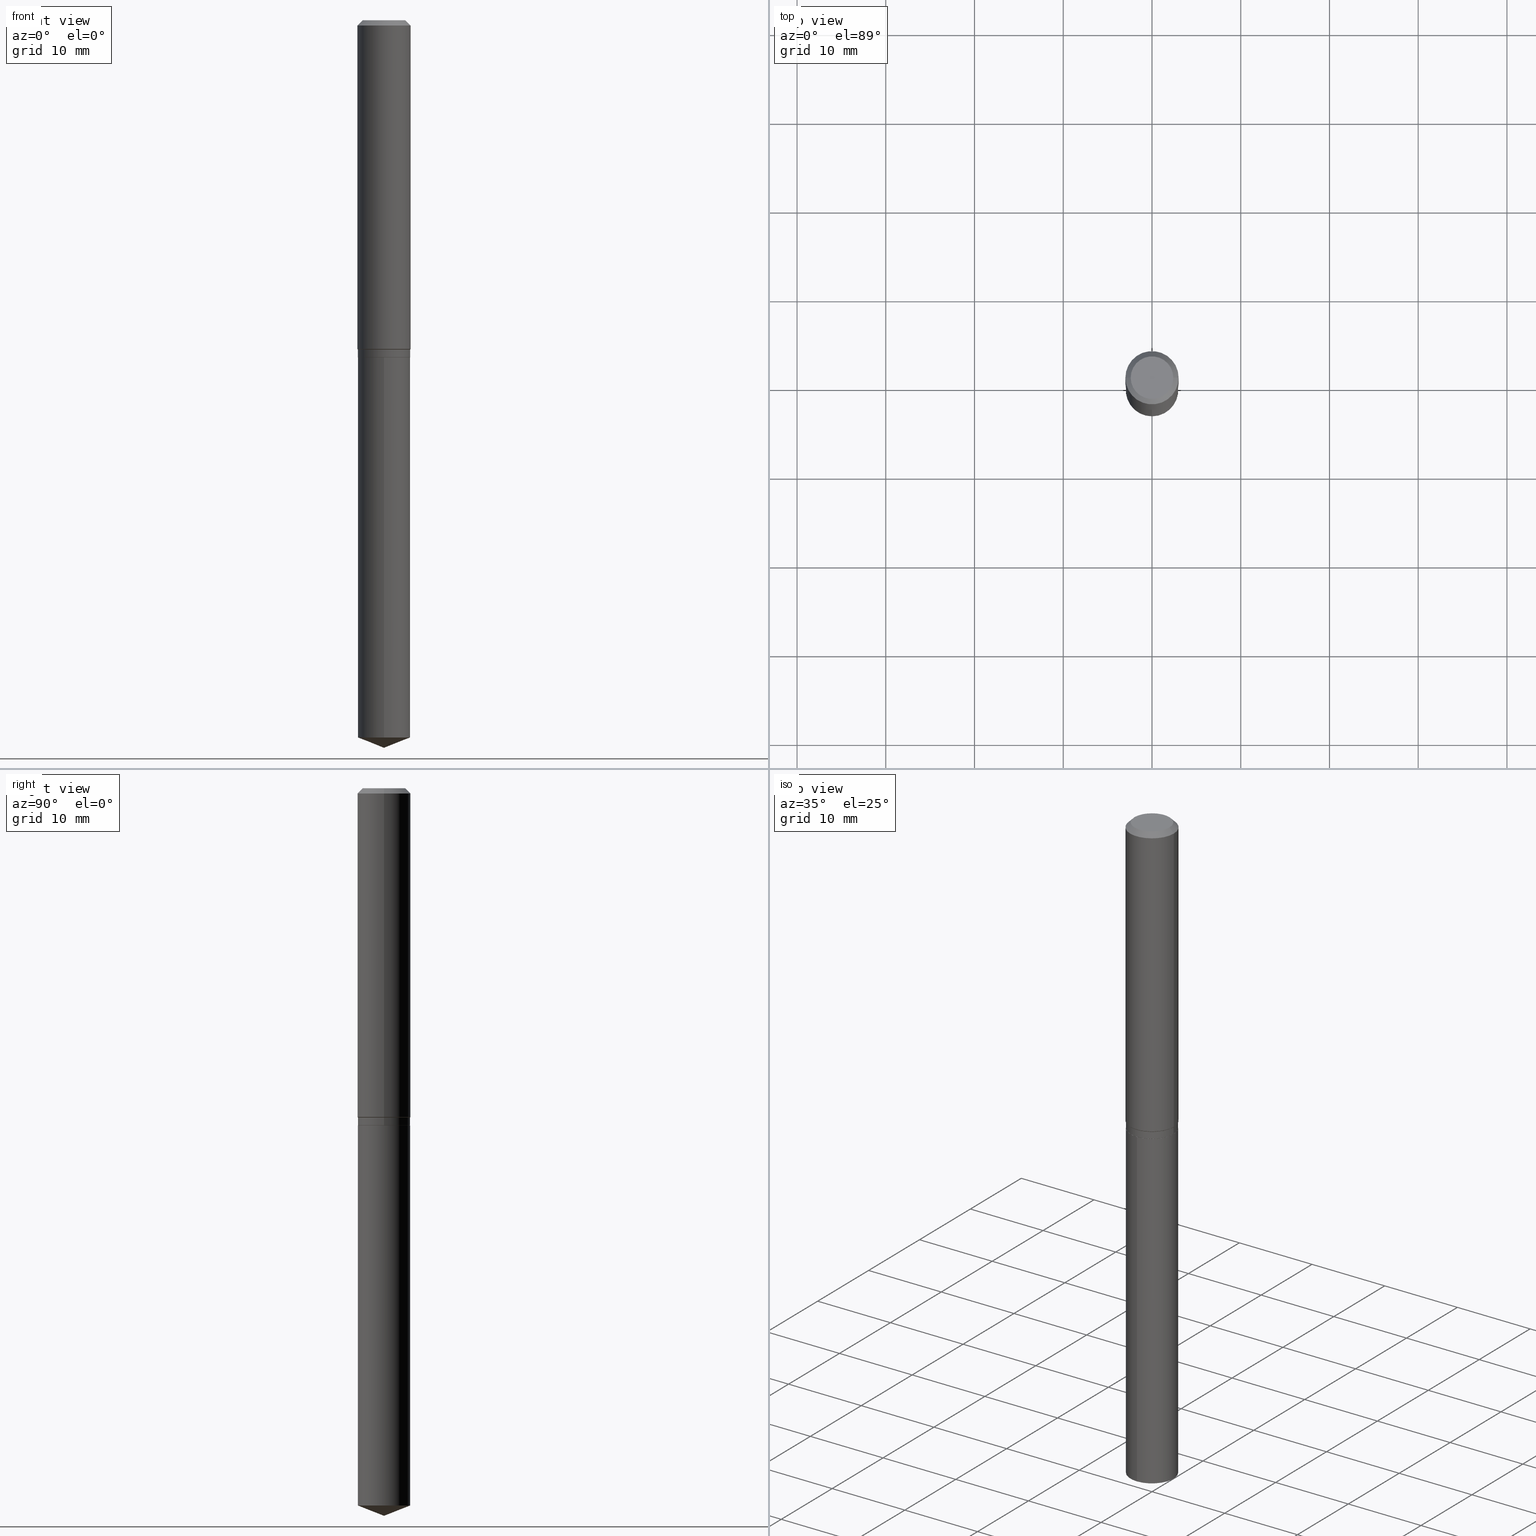
[diagram: canonical four-view strip — front | top / right | iso, engineering-drawing reading convention]
A machine part, canonical four-view strip (front | top / right | iso — engineering-drawing reading convention). The complete STEP part file that produces these views, byte-faithful:
ISO-10303-21;
HEADER;
FILE_DESCRIPTION (( 'STEP AP203' ),
    '1' );
FILE_NAME ('66532.STEP',
    '2024-04-25T00:25:37',
    ( '' ),
    ( '' ),
    'SwSTEP 2.0',
    'SolidWorks 2023',
    '' );
FILE_SCHEMA (( 'CONFIG_CONTROL_DESIGN' ));
ENDSEC;

DATA;
#1 = APPROVAL ( #393, 'UNSPECIFIED' ) ;
#2 = FACE_OUTER_BOUND ( 'NONE', #19, .T. ) ;
#3 = DATE_TIME_ROLE ( 'classification_date' ) ;
#4 = VECTOR ( 'NONE', #193, 39.37007874015748143 ) ;
#5 = CARTESIAN_POINT ( 'NONE',  ( 8.252953875854342889E-16, 0.1161499999999947713, -1.495700000000000474 ) ) ;
#6 = APPROVAL_DATE_TIME ( #41, #446 ) ;
#7 = DIRECTION ( 'NONE',  ( 1.000000000000000000, -6.982962677686265922E-15, 0.000000000000000000 ) ) ;
#8 = CARTESIAN_POINT ( 'NONE',  ( 7.893967087600545185E-29, -1.127051177785968140E-14, -3.228000000000000203 ) ) ;
#9 = DATE_AND_TIME ( #386, #75 ) ;
#10 = EDGE_CURVE ( 'NONE', #144, #476, #71, .T. ) ;
#11 = DIRECTION ( 'NONE',  ( -2.445468806185136597E-29, 3.491481338843145583E-15, 1.000000000000000000 ) ) ;
#12 = APPROVAL_DATE_TIME ( #456, #186 ) ;
#13 = AXIS2_PLACEMENT_3D ( 'NONE', #420, #463, #304 ) ;
#14 = ADVANCED_FACE ( 'NONE', ( #480 ), #68, .T. ) ;
#15 = DIRECTION ( 'NONE',  ( 1.000000000000000000, -6.982962677686265922E-15, 0.000000000000000000 ) ) ;
#16 = ORIENTED_EDGE ( 'NONE', *, *, #132, .T. ) ;
#17 = ADVANCED_FACE ( 'NONE', ( #448 ), #293, .F. ) ;
#18 = DIRECTION ( 'NONE',  ( 1.000000000000000000, -6.982962677686265922E-15, 0.000000000000000000 ) ) ;
#19 = EDGE_LOOP ( 'NONE', ( #206, #16, #65, #155 ) ) ;
#20 = EDGE_CURVE ( 'NONE', #476, #135, #414, .T. ) ;
#21 = ORIENTED_EDGE ( 'NONE', *, *, #66, .T. ) ;
#22 = LINE ( 'NONE', #197, #274 ) ;
#23 = CIRCLE ( 'NONE', #302, 0.1180999999999999966 ) ;
#24 = AXIS2_PLACEMENT_3D ( 'NONE', #243, #136, #361 ) ;
#25 = ORIENTED_EDGE ( 'NONE', *, *, #165, .F. ) ;
#26 = CARTESIAN_POINT ( 'NONE',  ( -0.1181000000000000799, 8.391509709326788873E-16, -5.809262341591047988E-30 ) ) ;
#27 = EDGE_LOOP ( 'NONE', ( #411, #301, #90, #244 ) ) ;
#28 = CALENDAR_DATE ( 2024, 24, 4 ) ;
#29 = ORIENTED_EDGE ( 'NONE', *, *, #316, .F. ) ;
#30 = CIRCLE ( 'NONE', #74, 0.1161500000000000032 ) ;
#31 = DIRECTION ( 'NONE',  ( -2.445468806185136597E-29, 3.491481338843145583E-15, 1.000000000000000000 ) ) ;
#32 = APPROVAL_PERSON_ORGANIZATION ( #80, #1, #51 ) ;
#33 = FACE_OUTER_BOUND ( 'NONE', #212, .T. ) ;
#34 = CARTESIAN_POINT ( 'NONE',  ( -0.09447999999999998066, 7.009847083995354710E-16, -1.928573779297727792E-17 ) ) ;
#35 = EDGE_CURVE ( 'NONE', #115, #458, #338, .T. ) ;
#36 = CARTESIAN_POINT ( 'NONE',  ( -0.1161500000000000032, -4.335288605291756006E-15, -1.495200000000000307 ) ) ;
#37 = CIRCLE ( 'NONE', #370, 0.09447999999999998066 ) ;
#38 = EDGE_LOOP ( 'NONE', ( #164, #283, #130, #137 ) ) ;
#39 = CC_DESIGN_PERSON_AND_ORGANIZATION_ASSIGNMENT ( #179, #410, ( #158 ) ) ;
#40 = CYLINDRICAL_SURFACE ( 'NONE', #321, 0.1161500000000000032 ) ;
#41 = DATE_AND_TIME ( #345, #105 ) ;
#42 = FACE_OUTER_BOUND ( 'NONE', #224, .T. ) ;
#43 = DIRECTION ( 'NONE',  ( 1.000000000000000000, -6.982962677686269866E-15, 0.000000000000000000 ) ) ;
#44 = CARTESIAN_POINT ( 'NONE',  ( 3.657687693411109493E-29, -5.222208638507693246E-15, -1.495700000000000029 ) ) ;
#45 = CLOSED_SHELL ( 'NONE', ( #306, #128, #437, #58, #194, #381, #375, #487, #14, #17, #217, #103 ) ) ;
#46 = CIRCLE ( 'NONE', #371, 0.1161500000000000032 ) ;
#47 = DIRECTION ( 'NONE',  ( 0.7071067811866199593, -2.468850131083015945E-15, 0.7071067811864750752 ) ) ;
#48 = PERSON_AND_ORGANIZATION ( #482, #177 ) ;
#49 = LINE ( 'NONE', #391, #313 ) ;
#50 = CARTESIAN_POINT ( 'NONE',  ( 0.09447999999999998066, -7.704367267948738690E-16, -1.928573779296752193E-17 ) ) ;
#51 = APPROVAL_ROLE ( '' ) ;
#52 = DIRECTION ( 'NONE',  ( -2.445468806185136597E-29, 3.491481338843145583E-15, 1.000000000000000000 ) ) ;
#53 = DIRECTION ( 'NONE',  ( 1.000000000000000000, -6.982962677686269866E-15, 0.000000000000000000 ) ) ;
#54 = DIRECTION ( 'NONE',  ( 1.000000000000000000, -6.982962677686265922E-15, 0.000000000000000000 ) ) ;
#55 = ORIENTED_EDGE ( 'NONE', *, *, #35, .F. ) ;
#56 = CARTESIAN_POINT ( 'NONE',  ( -0.1180999999999999966, 7.422191030112725094E-16, -0.02362000000000014088 ) ) ;
#57 = VERTEX_POINT ( 'NONE', #472 ) ;
#58 = ADVANCED_FACE ( 'NONE', ( #356 ), #229, .T. ) ;
#59 = EDGE_LOOP ( 'NONE', ( #358, #425 ) ) ;
#60 = CIRCLE ( 'NONE', #91, 0.1181000000000001632 ) ;
#61 = VECTOR ( 'NONE', #261, 39.37007874015748143 ) ;
#62 = DIRECTION ( 'NONE',  ( -2.445468806185136597E-29, 3.491481338843145583E-15, 1.000000000000000000 ) ) ;
#63 = VERTEX_POINT ( 'NONE', #131 ) ;
#64 = CARTESIAN_POINT ( 'NONE',  ( -0.1156500000000000028, -4.400465964601137164E-15, -1.495700000000000029 ) ) ;
#65 = ORIENTED_EDGE ( 'NONE', *, *, #403, .T. ) ;
#66 = EDGE_CURVE ( 'NONE', #253, #374, #239, .T. ) ;
#67 = LINE ( 'NONE', #98, #281 ) ;
#68 = CONICAL_SURFACE ( 'NONE', #133, 0.1180999999999999966, 0.7853981633974460586 ) ;
#69 = AXIS2_PLACEMENT_3D ( 'NONE', #402, #315, #232 ) ;
#70 = LOCAL_TIME ( 20, 25, 37.00000000000000000, #376 ) ;
#71 = LINE ( 'NONE', #174, #397 ) ;
#72 = CARTESIAN_POINT ( 'NONE',  ( 3.572585378955866653E-29, -5.100705087915951864E-15, -1.460900000000000309 ) ) ;
#73 = CARTESIAN_POINT ( 'NONE',  ( -8.838321353069555042E-28, 1.261909868020604563E-13, 36.14207874015747990 ) ) ;
#74 = AXIS2_PLACEMENT_3D ( 'NONE', #377, #31, #108 ) ;
#75 = LOCAL_TIME ( 20, 25, 37.00000000000000000, #117 ) ;
#76 = CARTESIAN_POINT ( 'NONE',  ( 0.000000000000000000, 0.000000000000000000, 0.000000000000000000 ) ) ;
#77 = EDGE_CURVE ( 'NONE', #135, #476, #30, .T. ) ;
#78 = CARTESIAN_POINT ( 'NONE',  ( 0.1156500000000000028, -6.029788272182109985E-15, -1.495700000000000029 ) ) ;
#79 = DIRECTION ( 'NONE',  ( 1.000000000000000000, -6.982962677686265922E-15, 0.000000000000000000 ) ) ;
#80 = PERSON_AND_ORGANIZATION ( #482, #177 ) ;
#81 = LOCAL_TIME ( 20, 25, 37.00000000000000000, #272 ) ;
#82 = DIRECTION ( 'NONE',  ( 1.000000000000000000, -6.982962677686265922E-15, 4.876176775795935793E-29 ) ) ;
#83 = APPROVAL_ROLE ( '' ) ;
#84 = ADVANCED_FACE ( 'NONE', ( #33 ), #259, .T. ) ;
#85 = CARTESIAN_POINT ( 'NONE',  ( 3.572585378955866653E-29, -5.100705087915951864E-15, -1.460900000000000309 ) ) ;
#86 = DIRECTION ( 'NONE',  ( 1.000000000000000000, -6.982962677686266711E-15, 0.000000000000000000 ) ) ;
#87 = DIRECTION ( 'NONE',  ( 1.000000000000000000, -6.982962677686265922E-15, 4.876176775795935793E-29 ) ) ;
#88 = DIRECTION ( 'NONE',  ( 1.000000000000000000, -6.982962677686267499E-15, 4.875432709231658792E-29 ) ) ;
#89 = DIRECTION ( 'NONE',  ( -2.445468806185136597E-29, 3.491481338843145583E-15, 1.000000000000000000 ) ) ;
#90 = ORIENTED_EDGE ( 'NONE', *, *, #254, .T. ) ;
#91 = AXIS2_PLACEMENT_3D ( 'NONE', #195, #52, #373 ) ;
#92 = EDGE_LOOP ( 'NONE', ( #442, #153, #473, #363 ) ) ;
#93 = EDGE_CURVE ( 'NONE', #203, #270, #405, .T. ) ;
#94 = CARTESIAN_POINT ( 'NONE',  ( 3.657687693411109493E-29, -5.222208638507693246E-15, -1.495700000000000029 ) ) ;
#95 = ORIENTED_EDGE ( 'NONE', *, *, #389, .T. ) ;
#96 = EDGE_CURVE ( 'NONE', #311, #278, #37, .T. ) ;
#97 = ORIENTED_EDGE ( 'NONE', *, *, #421, .F. ) ;
#98 = CARTESIAN_POINT ( 'NONE',  ( -0.1161500000000000032, -4.275409700330595673E-15, -1.460900000000000309 ) ) ;
#99 = AXIS2_PLACEMENT_3D ( 'NONE', #455, #116, #87 ) ;
#100 = ORIENTED_EDGE ( 'NONE', *, *, #171, .F. ) ;
#101 = CARTESIAN_POINT ( 'NONE',  ( 3.657687693411109493E-29, -5.222208638507693246E-15, -1.495700000000000029 ) ) ;
#102 = DIRECTION ( 'NONE',  ( -2.445439244954803263E-29, 3.491523672207503504E-15, 1.000000000000000000 ) ) ;
#103 = ADVANCED_FACE ( 'NONE', ( #360 ), #163, .T. ) ;
#104 = CIRCLE ( 'NONE', #69, 0.1156500000000000028 ) ;
#105 = LOCAL_TIME ( 20, 25, 37.00000000000000000, #271 ) ;
#106 = DIRECTION ( 'NONE',  ( 2.438088387897960049E-29, -3.491481338843145188E-15, -1.000000000000000000 ) ) ;
#107 = CC_DESIGN_PERSON_AND_ORGANIZATION_ASSIGNMENT ( #120, #124, ( #439 ) ) ;
#108 = DIRECTION ( 'NONE',  ( 1.000000000000000000, -6.982962677686265922E-15, 0.000000000000000000 ) ) ;
#109 = FACE_OUTER_BOUND ( 'NONE', #167, .T. ) ;
#110 = VERTEX_POINT ( 'NONE', #190 ) ;
#111 = DIRECTION ( 'NONE',  ( -6.982962677686265922E-15, -1.000000000000000000, 2.351999994545211393E-15 ) ) ;
#112 = PERSON_AND_ORGANIZATION_ROLE ( 'creator' ) ;
#113 = AXIS2_PLACEMENT_3D ( 'NONE', #332, #481, #380 ) ;
#114 = AXIS2_PLACEMENT_3D ( 'NONE', #357, #382, #86 ) ;
#115 = VERTEX_POINT ( 'NONE', #340 ) ;
#116 = DIRECTION ( 'NONE',  ( -2.438088387897960049E-29, 3.491481338843145188E-15, 1.000000000000000000 ) ) ;
#117 = COORDINATED_UNIVERSAL_TIME_OFFSET ( 5, 0, .BEHIND. ) ;
#118 =( CONVERSION_BASED_UNIT ( 'INCH', #309 ) LENGTH_UNIT ( ) NAMED_UNIT ( #418 ) );
#119 = CC_DESIGN_DATE_AND_TIME_ASSIGNMENT ( #9, #350, ( #462 ) ) ;
#120 = PERSON_AND_ORGANIZATION ( #482, #177 ) ;
#121 = DIRECTION ( 'NONE',  ( -2.445468806185136597E-29, 3.491481338843145583E-15, 1.000000000000000000 ) ) ;
#122 = EDGE_CURVE ( 'NONE', #320, #144, #427, .T. ) ;
#123 = DIRECTION ( 'NONE',  ( -2.445468806185136597E-29, 3.491481338843145583E-15, 1.000000000000000000 ) ) ;
#124 = PERSON_AND_ORGANIZATION_ROLE ( 'classification_officer' ) ;
#125 = DIRECTION ( 'NONE',  ( -2.445468806185136597E-29, 3.491481338843145583E-15, 1.000000000000000000 ) ) ;
#126 = AXIS2_PLACEMENT_3D ( 'NONE', #406, #89, #319 ) ;
#127 = APPROVAL_PERSON_ORGANIZATION ( #156, #446, #83 ) ;
#128 = ADVANCED_FACE ( 'NONE', ( #2 ), #208, .T. ) ;
#129 = CARTESIAN_POINT ( 'NONE',  ( 0.000000000000000000, 0.000000000000000000, 0.000000000000000000 ) ) ;
#130 = ORIENTED_EDGE ( 'NONE', *, *, #403, .F. ) ;
#131 = CARTESIAN_POINT ( 'NONE',  ( 7.893877882714105737E-29, -1.127063841388582228E-14, -3.228000000000000203 ) ) ;
#132 = EDGE_CURVE ( 'NONE', #278, #250, #300, .T. ) ;
#133 = AXIS2_PLACEMENT_3D ( 'NONE', #415, #333, #146 ) ;
#134 = VECTOR ( 'NONE', #222, 39.37007874015748143 ) ;
#135 = VERTEX_POINT ( 'NONE', #159 ) ;
#136 = DIRECTION ( 'NONE',  ( 0.000000000000000000, 0.000000000000000000, 1.000000000000000000 ) ) ;
#137 = ORIENTED_EDGE ( 'NONE', *, *, #254, .F. ) ;
#138 = ORIENTED_EDGE ( 'NONE', *, *, #66, .F. ) ;
#139 = DIRECTION ( 'NONE',  ( 6.982962677686265922E-15, 1.000000000000000000, -3.491523672207503899E-15 ) ) ;
#140 = VECTOR ( 'NONE', #256, 39.37007874015748143 ) ;
#141 = CONICAL_SURFACE ( 'NONE', #479, 0.1161500000000000032, 0.7853981633974308485 ) ;
#142 = FACE_OUTER_BOUND ( 'NONE', #27, .T. ) ;
#143 = CARTESIAN_POINT ( 'NONE',  ( 7.782036645042066556E-29, -1.111082845467075413E-14, -3.182247298257325330 ) ) ;
#144 = VERTEX_POINT ( 'NONE', #432 ) ;
#145 = FACE_OUTER_BOUND ( 'NONE', #401, .T. ) ;
#146 = DIRECTION ( 'NONE',  ( -1.000000000000000000, 6.982962677686266711E-15, 0.000000000000000000 ) ) ;
#147 = PERSON_AND_ORGANIZATION ( #482, #177 ) ;
#148 = AXIS2_PLACEMENT_3D ( 'NONE', #210, #399, #54 ) ;
#149 = APPLICATION_CONTEXT ( 'configuration controlled 3d designs of mechanical parts and assemblies' ) ;
#150 = CIRCLE ( 'NONE', #114, 0.1180999999999999966 ) ;
#151 = DIRECTION ( 'NONE',  ( 1.000000000000000000, -6.982962677686266711E-15, 4.876176775795936353E-29 ) ) ;
#152 = FACE_OUTER_BOUND ( 'NONE', #92, .T. ) ;
#153 = ORIENTED_EDGE ( 'NONE', *, *, #316, .T. ) ;
#154 = CIRCLE ( 'NONE', #355, 0.1161500000000000032 ) ;
#155 = ORIENTED_EDGE ( 'NONE', *, *, #468, .F. ) ;
#156 = PERSON_AND_ORGANIZATION ( #482, #177 ) ;
#157 = EDGE_CURVE ( 'NONE', #63, #110, #225, .T. ) ;
#158 = PRODUCT ( '66532', '66532', '', ( #218 ) ) ;
#159 = CARTESIAN_POINT ( 'NONE',  ( -0.1161500000000000032, -4.335288605291756006E-15, -1.460900000000000309 ) ) ;
#160 = PERSON_AND_ORGANIZATION ( #482, #177 ) ;
#161 = CARTESIAN_POINT ( 'NONE',  ( -8.110711150132233597E-16, -0.1161500000000052213, -1.495699999999999807 ) ) ;
#162 =( NAMED_UNIT ( * ) PLANE_ANGLE_UNIT ( ) SI_UNIT ( $, .RADIAN. ) );
#163 = CONICAL_SURFACE ( 'NONE', #176, 0.1156500000000000028, 0.7853981633975507526 ) ;
#164 = ORIENTED_EDGE ( 'NONE', *, *, #291, .T. ) ;
#165 = EDGE_CURVE ( 'NONE', #110, #203, #390, .T. ) ;
#166 = CARTESIAN_POINT ( 'NONE',  ( 3.657687693411109493E-29, -5.222208638507693246E-15, -1.495700000000000029 ) ) ;
#167 = EDGE_LOOP ( 'NONE', ( #444, #323, #215, #200 ) ) ;
#168 = ORIENTED_EDGE ( 'NONE', *, *, #171, .T. ) ;
#169 = DIRECTION ( 'NONE',  ( -2.445468806185136877E-29, 3.491481338843145188E-15, 1.000000000000000000 ) ) ;
#170 = ORIENTED_EDGE ( 'NONE', *, *, #132, .F. ) ;
#171 = EDGE_CURVE ( 'NONE', #63, #57, #388, .T. ) ;
#172 = ORIENTED_EDGE ( 'NONE', *, *, #77, .T. ) ;
#173 = APPROVAL_STATUS ( 'not_yet_approved' ) ;
#174 = CARTESIAN_POINT ( 'NONE',  ( 0.1161500000000000032, -8.110711150132598445E-16, 5.663679325086979799E-30 ) ) ;
#175 = DIRECTION ( 'NONE',  ( -0.7071067811865351382, 7.493145998870309984E-15, 0.7071067811865598962 ) ) ;
#176 = AXIS2_PLACEMENT_3D ( 'NONE', #166, #279, #43 ) ;
#177 = ORGANIZATION ( 'UNSPECIFIED', 'UNSPECIFIED', '' ) ;
#178 = DIRECTION ( 'NONE',  ( -2.445468806185136597E-29, 3.491481338843145583E-15, 1.000000000000000000 ) ) ;
#179 = PERSON_AND_ORGANIZATION ( #482, #177 ) ;
#180 = EDGE_LOOP ( 'NONE', ( #138, #372, #467, #236 ) ) ;
#181 = DIRECTION ( 'NONE',  ( -2.445439244954803263E-29, 3.491523672207503504E-15, 1.000000000000000000 ) ) ;
#182 = VECTOR ( 'NONE', #298, 39.37007874015748854 ) ;
#183 = APPROVAL_PERSON_ORGANIZATION ( #147, #186, #297 ) ;
#184 = EDGE_LOOP ( 'NONE', ( #354, #285, #404, #97 ) ) ;
#185 = PERSON_AND_ORGANIZATION_ROLE ( 'creator' ) ;
#186 = APPROVAL ( #173, 'UNSPECIFIED' ) ;
#187 = PLANE ( 'NONE',  #99 ) ;
#188 = APPROVAL_STATUS ( 'not_yet_approved' ) ;
#189 = ORIENTED_EDGE ( 'NONE', *, *, #10, .T. ) ;
#190 = CARTESIAN_POINT ( 'NONE',  ( 8.252953875854339931E-16, 0.1161499999999888871, -3.182247298257326218 ) ) ;
#191 = CIRCLE ( 'NONE', #384, 0.1161500000000000032 ) ;
#192 = DIRECTION ( 'NONE',  ( -2.445439244954803263E-29, 3.491523672207503504E-15, 1.000000000000000000 ) ) ;
#193 = DIRECTION ( 'NONE',  ( 0.7071067811865459074, -7.319954787623249734E-15, -0.7071067811865491270 ) ) ;
#194 = ADVANCED_FACE ( 'NONE', ( #152 ), #40, .T. ) ;
#195 = CARTESIAN_POINT ( 'NONE',  ( 3.567816714783804840E-29, -5.093896699305207606E-15, -1.458949999999999969 ) ) ;
#196 = COORDINATED_UNIVERSAL_TIME_OFFSET ( 5, 0, .BEHIND. ) ;
#197 = CARTESIAN_POINT ( 'NONE',  ( 0.1181000000000000799, -8.246878922347486570E-16, 5.758764772215004644E-30 ) ) ;
#198 = AXIS2_PLACEMENT_3D ( 'NONE', #461, #121, #428 ) ;
#199 = DIRECTION ( 'NONE',  ( -2.445468806185136597E-29, 3.491481338843145583E-15, 1.000000000000000000 ) ) ;
#200 = ORIENTED_EDGE ( 'NONE', *, *, #389, .F. ) ;
#201 = CC_DESIGN_PERSON_AND_ORGANIZATION_ASSIGNMENT ( #48, #112, ( #462 ) ) ;
#202 = DIRECTION ( 'NONE',  ( -0.7071067811865459074, 2.468850131082240100E-15, -0.7071067811865491270 ) ) ;
#203 = VERTEX_POINT ( 'NONE', #5 ) ;
#204 = CARTESIAN_POINT ( 'NONE',  ( -0.1156500000000000028, -4.397816737427025963E-15, -1.495700000000000029 ) ) ;
#205 = ADVANCED_FACE ( 'NONE', ( #230 ), #207, .T. ) ;
#206 = ORIENTED_EDGE ( 'NONE', *, *, #335, .F. ) ;
#207 = CONICAL_SURFACE ( 'NONE', #416, 99.94676754584088485, 1.195550537616122622 ) ;
#208 = CONICAL_SURFACE ( 'NONE', #13, 0.1180999999999999966, 0.7853981633974460586 ) ;
#209 = APPROVAL_DATE_TIME ( #317, #1 ) ;
#210 = CARTESIAN_POINT ( 'NONE',  ( 3.572585378955866653E-29, -5.100705087915951864E-15, -1.460900000000000309 ) ) ;
#211 = EDGE_CURVE ( 'NONE', #270, #203, #288, .T. ) ;
#212 = EDGE_LOOP ( 'NONE', ( #25, #400, #95, #419 ) ) ;
#213 = FACE_OUTER_BOUND ( 'NONE', #366, .T. ) ;
#214 = ORIENTED_EDGE ( 'NONE', *, *, #421, .T. ) ;
#215 = ORIENTED_EDGE ( 'NONE', *, *, #211, .F. ) ;
#216 = AXIS2_PLACEMENT_3D ( 'NONE', #219, #477, #139 ) ;
#217 = ADVANCED_FACE ( 'NONE', ( #42 ), #187, .F. ) ;
#218 = MECHANICAL_CONTEXT ( 'NONE', #490, 'mechanical' ) ;
#219 = CARTESIAN_POINT ( 'NONE',  ( 3.657687693411109493E-29, -5.222208638507693246E-15, -1.495700000000000029 ) ) ;
#220 = CC_DESIGN_DATE_AND_TIME_ASSIGNMENT ( #342, #3, ( #439 ) ) ;
#221 = CYLINDRICAL_SURFACE ( 'NONE', #198, 0.1161500000000000032 ) ;
#222 = DIRECTION ( 'NONE',  ( -2.445439244954803543E-29, 3.491523672207503899E-15, 1.000000000000000000 ) ) ;
#223 = AXIS2_PLACEMENT_3D ( 'NONE', #394, #11, #53 ) ;
#224 = EDGE_LOOP ( 'NONE', ( #318, #314 ) ) ;
#225 = LINE ( 'NONE', #8, #486 ) ;
#226 = LINE ( 'NONE', #433, #61 ) ;
#227 = PERSON_AND_ORGANIZATION ( #482, #177 ) ;
#228 = CARTESIAN_POINT ( 'NONE',  ( 0.000000000000000000, 0.000000000000000000, 0.000000000000000000 ) ) ;
#229 = CONICAL_SURFACE ( 'NONE', #148, 0.1161500000000000032, 0.7853981633974308485 ) ;
#230 = FACE_OUTER_BOUND ( 'NONE', #325, .T. ) ;
#231 = FACE_OUTER_BOUND ( 'NONE', #38, .T. ) ;
#232 = DIRECTION ( 'NONE',  ( 1.000000000000000000, -6.982962677686269866E-15, 0.000000000000000000 ) ) ;
#233 = FACE_OUTER_BOUND ( 'NONE', #438, .T. ) ;
#234 = AXIS2_PLACEMENT_3D ( 'NONE', #94, #436, #368 ) ;
#235 = PRODUCT_DEFINITION_FORMATION_WITH_SPECIFIED_SOURCE ( 'ANY', '', #158, .NOT_KNOWN. ) ;
#236 = ORIENTED_EDGE ( 'NONE', *, *, #387, .F. ) ;
#237 = DIRECTION ( 'NONE',  ( -2.445439244954803263E-29, 3.491523672207503504E-15, 1.000000000000000000 ) ) ;
#238 = APPLICATION_PROTOCOL_DEFINITION ( 'international standard', 'config_control_design', 1994, #490 ) ;
#239 = LINE ( 'NONE', #64, #347 ) ;
#240 = ORIENTED_EDGE ( 'NONE', *, *, #468, .T. ) ;
#241 = CARTESIAN_POINT ( 'NONE',  ( 0.1180999999999999966, -9.071566814582237199E-16, -0.02362000000000014088 ) ) ;
#242 = EDGE_CURVE ( 'NONE', #110, #57, #191, .T. ) ;
#243 = CARTESIAN_POINT ( 'NONE',  ( 0.000000000000000000, 0.000000000000000000, 0.000000000000000000 ) ) ;
#244 = ORIENTED_EDGE ( 'NONE', *, *, #262, .F. ) ;
#245 = CARTESIAN_POINT ( 'NONE',  ( 4.716267017698007905E-46, -6.733579360998555036E-32, -1.928573779297252010E-17 ) ) ;
#246 = DIRECTION ( 'NONE',  ( -2.445468806185136597E-29, 3.491481338843145583E-15, 1.000000000000000000 ) ) ;
#247 = CLOSED_SHELL ( 'NONE', ( #443, #205, #344, #84, #312 ) ) ;
#248 = EDGE_LOOP ( 'NONE', ( #29, #327, #189, #378 ) ) ;
#249 = DIRECTION ( 'NONE',  ( -6.982962677686265133E-15, -1.000000000000000000, 3.498627837349972274E-15 ) ) ;
#250 = VERTEX_POINT ( 'NONE', #241 ) ;
#251 = DIRECTION ( 'NONE',  ( -2.445439244954803263E-29, 3.491523672207503504E-15, 1.000000000000000000 ) ) ;
#252 = EDGE_CURVE ( 'NONE', #320, #253, #104, .T. ) ;
#253 = VERTEX_POINT ( 'NONE', #204 ) ;
#254 = EDGE_CURVE ( 'NONE', #458, #250, #22, .T. ) ;
#255 = AXIS2_PLACEMENT_3D ( 'NONE', #85, #246, #18 ) ;
#256 = DIRECTION ( 'NONE',  ( -2.445468806185136877E-29, 3.491481338843145188E-15, 1.000000000000000000 ) ) ;
#257 = AXIS2_PLACEMENT_3D ( 'NONE', #143, #102, #334 ) ;
#258 =( GEOMETRIC_REPRESENTATION_CONTEXT ( 3 ) GLOBAL_UNCERTAINTY_ASSIGNED_CONTEXT ( ( #460 ) ) GLOBAL_UNIT_ASSIGNED_CONTEXT ( ( #118, #162, #465 ) ) REPRESENTATION_CONTEXT ( 'NONE', 'WORKASPACE' ) );
#259 = CYLINDRICAL_SURFACE ( 'NONE', #430, 0.1161500000000000032 ) ;
#260 = DIRECTION ( 'NONE',  ( -1.000000000000000000, 6.982962677686265922E-15, -4.876176775795935793E-29 ) ) ;
#261 = DIRECTION ( 'NONE',  ( -2.445439244954803543E-29, 3.491523672207503899E-15, 1.000000000000000000 ) ) ;
#262 = EDGE_CURVE ( 'NONE', #299, #250, #23, .T. ) ;
#263 = CYLINDRICAL_SURFACE ( 'NONE', #289, 0.1161500000000000032 ) ;
#264 = CALENDAR_DATE ( 2024, 24, 4 ) ;
#265 = PRODUCT_RELATED_PRODUCT_CATEGORY ( 'detail', '', ( #158 ) ) ;
#266 = ORIENTED_EDGE ( 'NONE', *, *, #157, .F. ) ;
#267 = DIRECTION ( 'NONE',  ( 6.611014441532074478E-15, 0.9304175679820283484, 0.3665012267242876431 ) ) ;
#268 = CIRCLE ( 'NONE', #113, 0.09447999999999998066 ) ;
#269 = AXIS2_PLACEMENT_3D ( 'NONE', #228, #343, #457 ) ;
#270 = VERTEX_POINT ( 'NONE', #161 ) ;
#271 = COORDINATED_UNIVERSAL_TIME_OFFSET ( 5, 0, .BEHIND. ) ;
#272 = COORDINATED_UNIVERSAL_TIME_OFFSET ( 5, 0, .BEHIND. ) ;
#273 = CARTESIAN_POINT ( 'NONE',  ( 3.656464959008016692E-29, -5.220462897838271742E-15, -1.495200000000000307 ) ) ;
#274 = VECTOR ( 'NONE', #169, 39.37007874015748143 ) ;
#275 = ORIENTED_EDGE ( 'NONE', *, *, #93, .T. ) ;
#276 = DIRECTION ( 'NONE',  ( -6.982962677686265922E-15, -1.000000000000000000, 2.351999994545211393E-15 ) ) ;
#277 = EDGE_CURVE ( 'NONE', #253, #320, #392, .T. ) ;
#278 = VERTEX_POINT ( 'NONE', #50 ) ;
#279 = DIRECTION ( 'NONE',  ( -2.445468806185136597E-29, 3.491481338843145583E-15, 1.000000000000000000 ) ) ;
#280 = AXIS2_PLACEMENT_3D ( 'NONE', #413, #106, #260 ) ;
#281 = VECTOR ( 'NONE', #175, 39.37007874015748143 ) ;
#282 = CC_DESIGN_SECURITY_CLASSIFICATION ( #439, ( #235 ) ) ;
#283 = ORIENTED_EDGE ( 'NONE', *, *, #294, .T. ) ;
#284 = ORIENTED_EDGE ( 'NONE', *, *, #157, .T. ) ;
#285 = ORIENTED_EDGE ( 'NONE', *, *, #329, .T. ) ;
#286 = PLANE ( 'NONE',  #216 ) ;
#287 = EDGE_LOOP ( 'NONE', ( #470, #275 ) ) ;
#288 = CIRCLE ( 'NONE', #398, 0.1161500000000000032 ) ;
#289 = AXIS2_PLACEMENT_3D ( 'NONE', #44, #192, #351 ) ;
#290 = EDGE_CURVE ( 'NONE', #144, #374, #154, .T. ) ;
#291 = EDGE_CURVE ( 'NONE', #458, #115, #60, .T. ) ;
#292 = LINE ( 'NONE', #26, #140 ) ;
#293 = PLANE ( 'NONE',  #280 ) ;
#294 = EDGE_CURVE ( 'NONE', #115, #299, #292, .T. ) ;
#295 = CARTESIAN_POINT ( 'NONE',  ( 3.657687693411109493E-29, -5.222208638507693246E-15, -1.495700000000000029 ) ) ;
#296 = CC_DESIGN_APPROVAL ( #1, ( #439 ) ) ;
#297 = APPROVAL_ROLE ( '' ) ;
#298 = DIRECTION ( 'NONE',  ( -6.497071151882127725E-15, -0.9304175679820257949, 0.3665012267242941935 ) ) ;
#299 = VERTEX_POINT ( 'NONE', #483 ) ;
#300 = LINE ( 'NONE', #489, #4 ) ;
#301 = ORIENTED_EDGE ( 'NONE', *, *, #35, .T. ) ;
#302 = AXIS2_PLACEMENT_3D ( 'NONE', #324, #474, #359 ) ;
#303 = LOCAL_TIME ( 20, 25, 37.00000000000000000, #196 ) ;
#304 = DIRECTION ( 'NONE',  ( -1.000000000000000000, 6.982962677686266711E-15, 0.000000000000000000 ) ) ;
#305 =( LENGTH_UNIT ( ) NAMED_UNIT ( * ) SI_UNIT ( $, .METRE. ) );
#306 = ADVANCED_FACE ( 'NONE', ( #213 ), #450, .T. ) ;
#307 = CARTESIAN_POINT ( 'NONE',  ( 8.252953875853927751E-16, 0.1161499999999947713, -1.495700000000000474 ) ) ;
#308 = SECURITY_CLASSIFICATION_LEVEL ( 'unclassified' ) ;
#309 = LENGTH_MEASURE_WITH_UNIT ( LENGTH_MEASURE( 0.02539999999999999897 ), #305 );
#310 = CARTESIAN_POINT ( 'NONE',  ( 0.1181000000000001632, -5.918584591539955869E-15, -1.458949999999999969 ) ) ;
#311 = VERTEX_POINT ( 'NONE', #34 ) ;
#312 = ADVANCED_FACE ( 'NONE', ( #328 ), #286, .F. ) ;
#313 = VECTOR ( 'NONE', #396, 39.37007874015748143 ) ;
#314 = ORIENTED_EDGE ( 'NONE', *, *, #277, .F. ) ;
#315 = DIRECTION ( 'NONE',  ( -2.445468806185136597E-29, 3.491481338843145583E-15, 1.000000000000000000 ) ) ;
#316 = EDGE_CURVE ( 'NONE', #374, #135, #445, .T. ) ;
#317 = DATE_AND_TIME ( #264, #303 ) ;
#318 = ORIENTED_EDGE ( 'NONE', *, *, #252, .F. ) ;
#319 = DIRECTION ( 'NONE',  ( 1.000000000000000000, -6.982962677686263555E-15, 0.000000000000000000 ) ) ;
#320 = VERTEX_POINT ( 'NONE', #417 ) ;
#321 = AXIS2_PLACEMENT_3D ( 'NONE', #76, #123, #82 ) ;
#322 = AXIS2_PLACEMENT_3D ( 'NONE', #409, #451, #249 ) ;
#323 = ORIENTED_EDGE ( 'NONE', *, *, #165, .T. ) ;
#324 = CARTESIAN_POINT ( 'NONE',  ( 5.776197320209327532E-31, -8.246878922347559293E-17, -0.02362000000000014088 ) ) ;
#325 = EDGE_LOOP ( 'NONE', ( #100, #284, #408 ) ) ;
#326 = DIRECTION ( 'NONE',  ( 1.000000000000000000, -6.982962677686269866E-15, 0.000000000000000000 ) ) ;
#327 = ORIENTED_EDGE ( 'NONE', *, *, #387, .T. ) ;
#328 = FACE_OUTER_BOUND ( 'NONE', #287, .T. ) ;
#329 = EDGE_CURVE ( 'NONE', #135, #115, #67, .T. ) ;
#330 = ADVANCED_BREP_SHAPE_REPRESENTATION ( '66532', ( #431, #426, #24 ), #258 ) ;
#331 = DIRECTION ( 'NONE',  ( -2.445468806185136877E-29, 3.491481338843145188E-15, 1.000000000000000000 ) ) ;
#332 = CARTESIAN_POINT ( 'NONE',  ( 4.716267017698007905E-46, -6.733579360998555036E-32, -1.928573779297252010E-17 ) ) ;
#333 = DIRECTION ( 'NONE',  ( 2.445468806185136597E-29, -3.491481338843145583E-15, -1.000000000000000000 ) ) ;
#334 = DIRECTION ( 'NONE',  ( -6.982962677686265922E-15, -1.000000000000000000, 4.703999989090422785E-15 ) ) ;
#335 = EDGE_CURVE ( 'NONE', #278, #311, #268, .T. ) ;
#336 = ORIENTED_EDGE ( 'NONE', *, *, #252, .T. ) ;
#337 = EDGE_CURVE ( 'NONE', #57, #110, #379, .T. ) ;
#338 = CIRCLE ( 'NONE', #126, 0.1181000000000001632 ) ;
#339 = VECTOR ( 'NONE', #202, 39.37007874015748143 ) ;
#340 = CARTESIAN_POINT ( 'NONE',  ( -0.1181000000000001632, -4.254745728372527042E-15, -1.458949999999999969 ) ) ;
#341 = ORIENTED_EDGE ( 'NONE', *, *, #96, .F. ) ;
#342 = DATE_AND_TIME ( #429, #81 ) ;
#343 = DIRECTION ( 'NONE',  ( -2.445468806185136597E-29, 3.491481338843145583E-15, 1.000000000000000000 ) ) ;
#344 = ADVANCED_FACE ( 'NONE', ( #145 ), #423, .T. ) ;
#345 = CALENDAR_DATE ( 2024, 24, 4 ) ;
#346 = CYLINDRICAL_SURFACE ( 'NONE', #269, 0.1181000000000000799 ) ;
#347 = VECTOR ( 'NONE', #485, 39.37007874015748143 ) ;
#348 = CC_DESIGN_APPROVAL ( #446, ( #235 ) ) ;
#349 = DESIGN_CONTEXT ( 'detailed design', #149, 'design' ) ;
#350 = DATE_TIME_ROLE ( 'creation_date' ) ;
#351 = DIRECTION ( 'NONE',  ( -6.982962677686265922E-15, -1.000000000000000000, 2.351999994545211393E-15 ) ) ;
#352 = DIRECTION ( 'NONE',  ( -2.445468806185136597E-29, 3.491481338843145583E-15, 1.000000000000000000 ) ) ;
#353 = CC_DESIGN_PERSON_AND_ORGANIZATION_ASSIGNMENT ( #227, #185, ( #235 ) ) ;
#354 = ORIENTED_EDGE ( 'NONE', *, *, #20, .T. ) ;
#355 = AXIS2_PLACEMENT_3D ( 'NONE', #395, #199, #15 ) ;
#356 = FACE_OUTER_BOUND ( 'NONE', #184, .T. ) ;
#357 = CARTESIAN_POINT ( 'NONE',  ( 5.776197320209327532E-31, -8.246878922347559293E-17, -0.02362000000000014088 ) ) ;
#358 = ORIENTED_EDGE ( 'NONE', *, *, #96, .T. ) ;
#359 = DIRECTION ( 'NONE',  ( 1.000000000000000000, -6.982962677686266711E-15, 0.000000000000000000 ) ) ;
#360 = FACE_OUTER_BOUND ( 'NONE', #180, .T. ) ;
#361 = DIRECTION ( 'NONE',  ( 1.000000000000000000, 0.000000000000000000, 0.000000000000000000 ) ) ;
#362 = PRODUCT_DEFINITION_SHAPE ( 'NONE', 'NONE',  #462 ) ;
#363 = ORIENTED_EDGE ( 'NONE', *, *, #10, .F. ) ;
#364 = CARTESIAN_POINT ( 'NONE',  ( 7.782036645042066556E-29, -1.111082845467075413E-14, -3.182247298257325330 ) ) ;
#365 = CARTESIAN_POINT ( 'NONE',  ( 0.1161500000000000032, -5.911776202929211610E-15, -1.460900000000000309 ) ) ;
#366 = EDGE_LOOP ( 'NONE', ( #336, #21, #447, #440 ) ) ;
#367 = SHAPE_DEFINITION_REPRESENTATION ( #362, #330 ) ;
#368 = DIRECTION ( 'NONE',  ( -6.982962677686265922E-15, -1.000000000000000000, 2.351999994545211393E-15 ) ) ;
#369 = CC_DESIGN_PERSON_AND_ORGANIZATION_ASSIGNMENT ( #160, #459, ( #235 ) ) ;
#370 = AXIS2_PLACEMENT_3D ( 'NONE', #245, #62, #88 ) ;
#371 = AXIS2_PLACEMENT_3D ( 'NONE', #273, #352, #79 ) ;
#372 = ORIENTED_EDGE ( 'NONE', *, *, #277, .T. ) ;
#373 = DIRECTION ( 'NONE',  ( 1.000000000000000000, -6.982962677686263555E-15, 0.000000000000000000 ) ) ;
#374 = VERTEX_POINT ( 'NONE', #36 ) ;
#375 = ADVANCED_FACE ( 'NONE', ( #233 ), #141, .T. ) ;
#376 = COORDINATED_UNIVERSAL_TIME_OFFSET ( 5, 0, .BEHIND. ) ;
#377 = CARTESIAN_POINT ( 'NONE',  ( 3.572585378955866653E-29, -5.100705087915951864E-15, -1.460900000000000309 ) ) ;
#378 = ORIENTED_EDGE ( 'NONE', *, *, #77, .F. ) ;
#379 = CIRCLE ( 'NONE', #257, 0.1161500000000000032 ) ;
#380 = DIRECTION ( 'NONE',  ( 1.000000000000000000, -6.982962677686267499E-15, 4.875432709231658792E-29 ) ) ;
#381 = ADVANCED_FACE ( 'NONE', ( #488 ), #221, .T. ) ;
#382 = DIRECTION ( 'NONE',  ( -2.445468806185136597E-29, 3.491481338843145583E-15, 1.000000000000000000 ) ) ;
#383 = EDGE_LOOP ( 'NONE', ( #170, #341, #240, #475 ) ) ;
#384 = AXIS2_PLACEMENT_3D ( 'NONE', #364, #237, #441 ) ;
#385 = CARTESIAN_POINT ( 'NONE',  ( 3.657687693411109493E-29, -5.222208638507693246E-15, -1.495700000000000029 ) ) ;
#386 = CALENDAR_DATE ( 2024, 24, 4 ) ;
#387 = EDGE_CURVE ( 'NONE', #374, #144, #46, .T. ) ;
#388 = LINE ( 'NONE', #424, #182 ) ;
#389 = EDGE_CURVE ( 'NONE', #57, #270, #226, .T. ) ;
#390 = LINE ( 'NONE', #307, #134 ) ;
#391 = CARTESIAN_POINT ( 'NONE',  ( 0.1161500000000000032, -5.911776202929211610E-15, -1.460900000000000309 ) ) ;
#392 = CIRCLE ( 'NONE', #223, 0.1156500000000000028 ) ;
#393 = APPROVAL_STATUS ( 'not_yet_approved' ) ;
#394 = CARTESIAN_POINT ( 'NONE',  ( 3.657687693411109493E-29, -5.222208638507693246E-15, -1.495700000000000029 ) ) ;
#395 = CARTESIAN_POINT ( 'NONE',  ( 3.656464959008016692E-29, -5.220462897838271742E-15, -1.495200000000000307 ) ) ;
#396 = DIRECTION ( 'NONE',  ( 0.7071067811865351382, -2.468850131082127293E-15, 0.7071067811865598962 ) ) ;
#397 = VECTOR ( 'NONE', #331, 39.37007874015748143 ) ;
#398 = AXIS2_PLACEMENT_3D ( 'NONE', #385, #453, #111 ) ;
#399 = DIRECTION ( 'NONE',  ( -2.445468806185136597E-29, 3.491481338843145583E-15, 1.000000000000000000 ) ) ;
#400 = ORIENTED_EDGE ( 'NONE', *, *, #242, .T. ) ;
#401 = EDGE_LOOP ( 'NONE', ( #266, #168, #469 ) ) ;
#402 = CARTESIAN_POINT ( 'NONE',  ( 3.657687693411109493E-29, -5.222208638507693246E-15, -1.495700000000000029 ) ) ;
#403 = EDGE_CURVE ( 'NONE', #250, #299, #150, .T. ) ;
#404 = ORIENTED_EDGE ( 'NONE', *, *, #291, .F. ) ;
#405 = CIRCLE ( 'NONE', #234, 0.1161500000000000032 ) ;
#406 = CARTESIAN_POINT ( 'NONE',  ( 3.567816714783804840E-29, -5.093896699305207606E-15, -1.458949999999999969 ) ) ;
#407 = AXIS2_PLACEMENT_3D ( 'NONE', #129, #435, #151 ) ;
#408 = ORIENTED_EDGE ( 'NONE', *, *, #337, .F. ) ;
#409 = CARTESIAN_POINT ( 'NONE',  ( -8.838321353069555042E-28, 1.261909868020604563E-13, 36.14207874015747990 ) ) ;
#410 = PERSON_AND_ORGANIZATION_ROLE ( 'design_owner' ) ;
#411 = ORIENTED_EDGE ( 'NONE', *, *, #294, .F. ) ;
#412 = DIRECTION ( 'NONE',  ( -2.445468806185136877E-29, 3.491481338843145188E-15, 1.000000000000000000 ) ) ;
#413 = CARTESIAN_POINT ( 'NONE',  ( 2.358133508849003952E-46, -3.366789680499277518E-32, -9.642868896486260050E-18 ) ) ;
#414 = CIRCLE ( 'NONE', #255, 0.1161500000000000032 ) ;
#415 = CARTESIAN_POINT ( 'NONE',  ( 5.776197320209327532E-31, -8.246878922347559293E-17, -0.02362000000000014088 ) ) ;
#416 = AXIS2_PLACEMENT_3D ( 'NONE', #73, #181, #452 ) ;
#417 = CARTESIAN_POINT ( 'NONE',  ( 0.1156500000000000028, -6.029788272182109985E-15, -1.495700000000000029 ) ) ;
#418 = DIMENSIONAL_EXPONENTS ( 1.000000000000000000, 0.000000000000000000, 0.000000000000000000, 0.000000000000000000, 0.000000000000000000, 0.000000000000000000, 0.000000000000000000 ) ;
#419 = ORIENTED_EDGE ( 'NONE', *, *, #93, .F. ) ;
#420 = CARTESIAN_POINT ( 'NONE',  ( 5.776197320209327532E-31, -8.246878922347559293E-17, -0.02362000000000014088 ) ) ;
#421 = EDGE_CURVE ( 'NONE', #476, #458, #49, .T. ) ;
#422 = AXIS2_PLACEMENT_3D ( 'NONE', #295, #178, #326 ) ;
#423 = CONICAL_SURFACE ( 'NONE', #322, 99.94676754584088485, 1.195550537616122622 ) ;
#424 = CARTESIAN_POINT ( 'NONE',  ( 7.893877882714105737E-29, -1.127063841388582228E-14, -3.228000000000000203 ) ) ;
#425 = ORIENTED_EDGE ( 'NONE', *, *, #335, .T. ) ;
#426 = MANIFOLD_SOLID_BREP ( 'Body-Move/Copy2[2]', #45 ) ;
#427 = LINE ( 'NONE', #78, #471 ) ;
#428 = DIRECTION ( 'NONE',  ( 1.000000000000000000, -6.982962677686265922E-15, 4.876176775795935793E-29 ) ) ;
#429 = CALENDAR_DATE ( 2024, 24, 4 ) ;
#430 = AXIS2_PLACEMENT_3D ( 'NONE', #101, #251, #276 ) ;
#431 = MANIFOLD_SOLID_BREP ( 'Body-Move/Copy2[1]', #247 ) ;
#432 = CARTESIAN_POINT ( 'NONE',  ( 0.1161500000000000032, -6.031534012851531488E-15, -1.495200000000000307 ) ) ;
#433 = CARTESIAN_POINT ( 'NONE',  ( -8.110711150132233597E-16, -0.1161500000000052213, -1.495699999999999807 ) ) ;
#434 = ORIENTED_EDGE ( 'NONE', *, *, #329, .F. ) ;
#435 = DIRECTION ( 'NONE',  ( -2.445468806185136597E-29, 3.491481338843145583E-15, 1.000000000000000000 ) ) ;
#436 = DIRECTION ( 'NONE',  ( -2.445439244954803263E-29, 3.491523672207503504E-15, 1.000000000000000000 ) ) ;
#437 = ADVANCED_FACE ( 'NONE', ( #231 ), #466, .T. ) ;
#438 = EDGE_LOOP ( 'NONE', ( #434, #172, #214, #55 ) ) ;
#439 = SECURITY_CLASSIFICATION ( '', '', #308 ) ;
#440 = ORIENTED_EDGE ( 'NONE', *, *, #122, .F. ) ;
#441 = DIRECTION ( 'NONE',  ( -6.982962677686265922E-15, -1.000000000000000000, 4.703999989090422785E-15 ) ) ;
#442 = ORIENTED_EDGE ( 'NONE', *, *, #290, .T. ) ;
#443 = ADVANCED_FACE ( 'NONE', ( #109 ), #263, .T. ) ;
#444 = ORIENTED_EDGE ( 'NONE', *, *, #337, .T. ) ;
#445 = LINE ( 'NONE', #449, #478 ) ;
#446 = APPROVAL ( #188, 'UNSPECIFIED' ) ;
#447 = ORIENTED_EDGE ( 'NONE', *, *, #290, .F. ) ;
#448 = FACE_OUTER_BOUND ( 'NONE', #59, .T. ) ;
#449 = CARTESIAN_POINT ( 'NONE',  ( -0.1161500000000000032, 8.252953875853563889E-16, -5.713343107331073533E-30 ) ) ;
#450 = CONICAL_SURFACE ( 'NONE', #422, 0.1156500000000000028, 0.7853981633975507526 ) ;
#451 = DIRECTION ( 'NONE',  ( -2.445439244954803263E-29, 3.491523672207503504E-15, 1.000000000000000000 ) ) ;
#452 = DIRECTION ( 'NONE',  ( -6.982962677686265133E-15, -1.000000000000000000, 3.498627837349972274E-15 ) ) ;
#453 = DIRECTION ( 'NONE',  ( -2.445439244954803263E-29, 3.491523672207503504E-15, 1.000000000000000000 ) ) ;
#454 = CC_DESIGN_APPROVAL ( #186, ( #462 ) ) ;
#455 = CARTESIAN_POINT ( 'NONE',  ( 3.657687693411109493E-29, -5.222208638507693246E-15, -1.495700000000000029 ) ) ;
#456 = DATE_AND_TIME ( #28, #70 ) ;
#457 = DIRECTION ( 'NONE',  ( 1.000000000000000000, -6.982962677686266711E-15, 4.876176775795936353E-29 ) ) ;
#458 = VERTEX_POINT ( 'NONE', #310 ) ;
#459 = PERSON_AND_ORGANIZATION_ROLE ( 'design_supplier' ) ;
#460 = UNCERTAINTY_MEASURE_WITH_UNIT (LENGTH_MEASURE( 1.000000000000000082E-05 ), #118, 'distance_accuracy_value', 'NONE');
#461 = CARTESIAN_POINT ( 'NONE',  ( 0.000000000000000000, 0.000000000000000000, 0.000000000000000000 ) ) ;
#462 = PRODUCT_DEFINITION ( 'UNKNOWN', '', #235, #349 ) ;
#463 = DIRECTION ( 'NONE',  ( 2.445468806185136597E-29, -3.491481338843145583E-15, -1.000000000000000000 ) ) ;
#464 = LINE ( 'NONE', #56, #339 ) ;
#465 =( NAMED_UNIT ( * ) SI_UNIT ( $, .STERADIAN. ) SOLID_ANGLE_UNIT ( ) );
#466 = CYLINDRICAL_SURFACE ( 'NONE', #407, 0.1181000000000000799 ) ;
#467 = ORIENTED_EDGE ( 'NONE', *, *, #122, .T. ) ;
#468 = EDGE_CURVE ( 'NONE', #311, #299, #464, .T. ) ;
#469 = ORIENTED_EDGE ( 'NONE', *, *, #242, .F. ) ;
#470 = ORIENTED_EDGE ( 'NONE', *, *, #211, .T. ) ;
#471 = VECTOR ( 'NONE', #47, 39.37007874015748143 ) ;
#472 = CARTESIAN_POINT ( 'NONE',  ( -8.110711150131819445E-16, -0.1161500000000111055, -3.182247298257324886 ) ) ;
#473 = ORIENTED_EDGE ( 'NONE', *, *, #20, .F. ) ;
#474 = DIRECTION ( 'NONE',  ( -2.445468806185136597E-29, 3.491481338843145583E-15, 1.000000000000000000 ) ) ;
#475 = ORIENTED_EDGE ( 'NONE', *, *, #262, .T. ) ;
#476 = VERTEX_POINT ( 'NONE', #365 ) ;
#477 = DIRECTION ( 'NONE',  ( 2.445439244954802703E-29, -3.491523672207503899E-15, -1.000000000000000000 ) ) ;
#478 = VECTOR ( 'NONE', #412, 39.37007874015748143 ) ;
#479 = AXIS2_PLACEMENT_3D ( 'NONE', #72, #125, #7 ) ;
#480 = FACE_OUTER_BOUND ( 'NONE', #383, .T. ) ;
#481 = DIRECTION ( 'NONE',  ( -2.445468806185136597E-29, 3.491481338843145583E-15, 1.000000000000000000 ) ) ;
#482 = PERSON ( 'UNSPECIFIED', 'UNSPECIFIED', 'UNSPECIFIED', ('UNSPECIFIED'), ('UNSPECIFIED'), ('UNSPECIFIED') ) ;
#483 = CARTESIAN_POINT ( 'NONE',  ( -0.1180999999999999966, -1.749031773331661954E-15, -0.02362000000000014088 ) ) ;
#484 = APPLICATION_PROTOCOL_DEFINITION ( 'international standard', 'config_control_design', 1994, #149 ) ;
#485 = DIRECTION ( 'NONE',  ( -0.7071067811866199593, 7.493145998870616062E-15, 0.7071067811864750752 ) ) ;
#486 = VECTOR ( 'NONE', #267, 39.37007874015748143 ) ;
#487 = ADVANCED_FACE ( 'NONE', ( #142 ), #346, .T. ) ;
#488 = FACE_OUTER_BOUND ( 'NONE', #248, .T. ) ;
#489 = CARTESIAN_POINT ( 'NONE',  ( 0.1180999999999999966, -8.926936027602933910E-16, -0.02362000000000014088 ) ) ;
#490 = APPLICATION_CONTEXT ( 'configuration controlled 3d designs of mechanical parts and assemblies' ) ;
ENDSEC;
END-ISO-10303-21;
